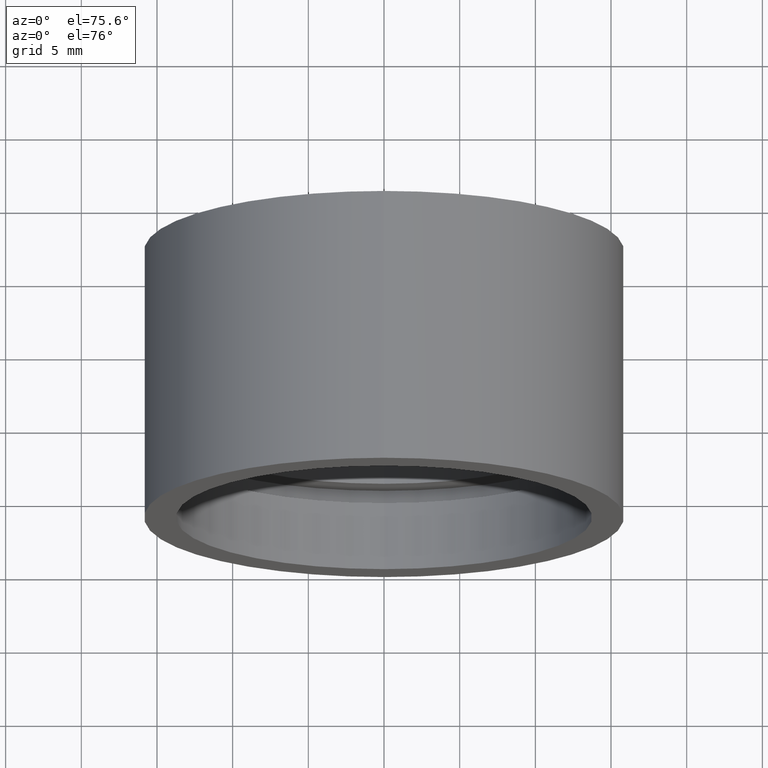
[diagram: clean part render]
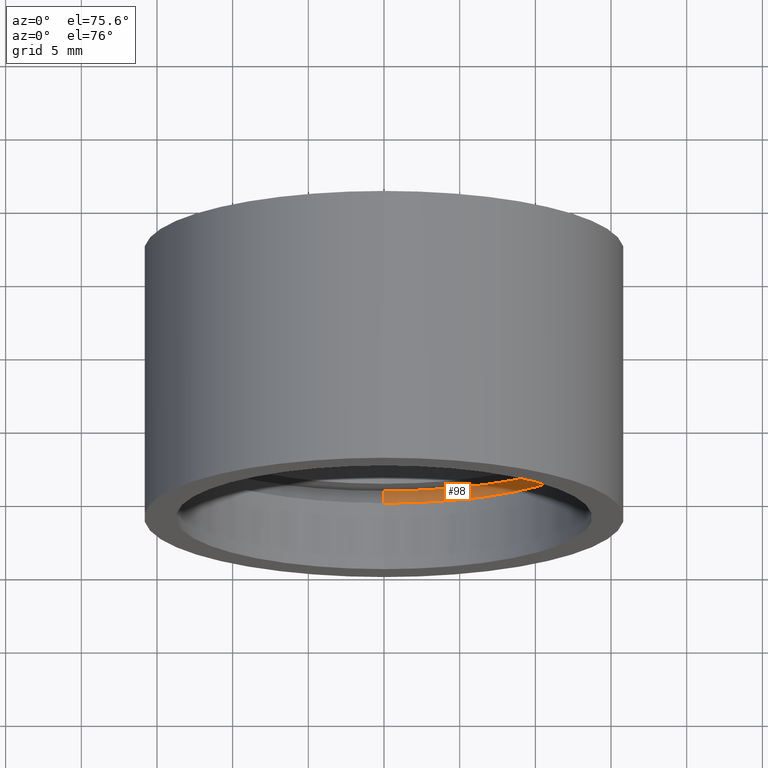
[diagram: same view with one face highlighted and labeled with its STEP entity id]
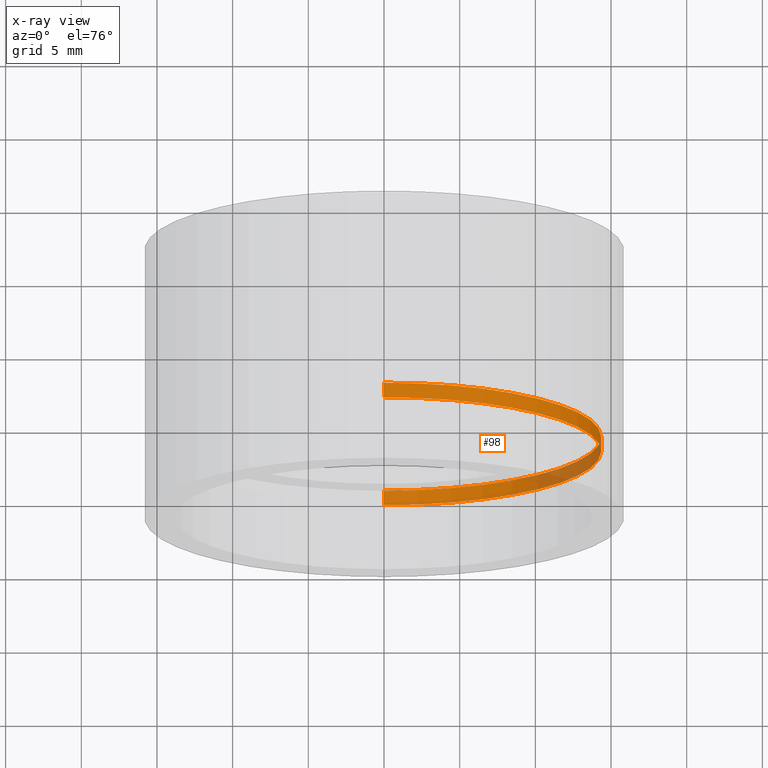
[diagram: x-ray of the same camera — body ghosted, the highlighted face saturated]
A machine part, auxiliary view. The second image highlights one B-rep face of the part: STEP entity #98.
The next image is the same camera in x-ray: the body ghosted, the highlighted face saturated — about 15% of this face is hidden behind the body in this view.
In plain terms, the highlighted cylindrical surface (partial cylindrical patch) has radius 14.35 mm, axis along (-0, 1, -0).
Its self-contained STEP definition (entity closure, byte-faithful):
#14 = VERTEX_POINT ( 'NONE', #276 ) ;
#15 = EDGE_CURVE ( 'NONE', #108, #325, #399, .T. ) ;
#17 = FACE_OUTER_BOUND ( 'NONE', #475, .T. ) ;
#55 = VECTOR ( 'NONE', #201, 1000.000000000000000 ) ;
#98 = ADVANCED_FACE ( 'NONE', ( #17 ), #213, .F. ) ;
#108 = VERTEX_POINT ( 'NONE', #619 ) ;
#109 = CIRCLE ( 'NONE', #278, 14.35000000000001900 ) ;
#122 = AXIS2_PLACEMENT_3D ( 'NONE', #427, #180, #185 ) ;
#127 = CARTESIAN_POINT ( 'NONE',  ( 1.757368156776454300E-015, 4.499999999999976000, -14.35000000000001900 ) ) ;
#132 = ORIENTED_EDGE ( 'NONE', *, *, #191, .T. ) ;
#141 = LINE ( 'NONE', #581, #55 ) ;
#149 = EDGE_CURVE ( 'NONE', #417, #325, #409, .T. ) ;
#180 = DIRECTION ( 'NONE',  ( -0.0000000000000000000, 1.000000000000000000, -0.0000000000000000000 ) ) ;
#185 = DIRECTION ( 'NONE',  ( 0.0000000000000000000, 0.0000000000000000000, 1.000000000000000000 ) ) ;
#191 = EDGE_CURVE ( 'NONE', #14, #108, #141, .T. ) ;
#201 = DIRECTION ( 'NONE',  ( -0.0000000000000000000, 1.000000000000000000, -0.0000000000000000000 ) ) ;
#213 = CYLINDRICAL_SURFACE ( 'NONE', #500, 14.35000000000001900 ) ;
#217 = DIRECTION ( 'NONE',  ( -0.0000000000000000000, 1.000000000000000000, -0.0000000000000000000 ) ) ;
#248 = CARTESIAN_POINT ( 'NONE',  ( 1.757368156776454300E-015, 161.3761669434274500, -14.35000000000001900 ) ) ;
#276 = CARTESIAN_POINT ( 'NONE',  ( 0.0000000000000000000, 4.499999999999976000, 14.35000000000001900 ) ) ;
#278 = AXIS2_PLACEMENT_3D ( 'NONE', #322, #217, #560 ) ;
#286 = CARTESIAN_POINT ( 'NONE',  ( 0.0000000000000000000, 161.3761669434274500, 0.0000000000000000000 ) ) ;
#299 = DIRECTION ( 'NONE',  ( -0.0000000000000000000, 1.000000000000000000, -0.0000000000000000000 ) ) ;
#312 = ORIENTED_EDGE ( 'NONE', *, *, #15, .T. ) ;
#322 = CARTESIAN_POINT ( 'NONE',  ( 0.0000000000000000000, 4.499999999999976000, 0.0000000000000000000 ) ) ;
#325 = VERTEX_POINT ( 'NONE', #499 ) ;
#359 = EDGE_CURVE ( 'NONE', #14, #417, #109, .T. ) ;
#376 = DIRECTION ( 'NONE',  ( 0.0000000000000000000, 0.0000000000000000000, 1.000000000000000000 ) ) ;
#399 = CIRCLE ( 'NONE', #122, 14.35000000000001900 ) ;
#409 = LINE ( 'NONE', #248, #598 ) ;
#417 = VERTEX_POINT ( 'NONE', #127 ) ;
#427 = CARTESIAN_POINT ( 'NONE',  ( 0.0000000000000000000, 5.499999999999976900, 0.0000000000000000000 ) ) ;
#475 = EDGE_LOOP ( 'NONE', ( #489, #554, #132, #312 ) ) ;
#489 = ORIENTED_EDGE ( 'NONE', *, *, #149, .F. ) ;
#499 = CARTESIAN_POINT ( 'NONE',  ( 1.757368156776454300E-015, 5.499999999999976900, -14.35000000000001900 ) ) ;
#500 = AXIS2_PLACEMENT_3D ( 'NONE', #286, #528, #376 ) ;
#528 = DIRECTION ( 'NONE',  ( -0.0000000000000000000, 1.000000000000000000, -0.0000000000000000000 ) ) ;
#554 = ORIENTED_EDGE ( 'NONE', *, *, #359, .F. ) ;
#560 = DIRECTION ( 'NONE',  ( 0.0000000000000000000, 0.0000000000000000000, 1.000000000000000000 ) ) ;
#581 = CARTESIAN_POINT ( 'NONE',  ( 0.0000000000000000000, 161.3761669434274500, 14.35000000000001900 ) ) ;
#598 = VECTOR ( 'NONE', #299, 1000.000000000000000 ) ;
#619 = CARTESIAN_POINT ( 'NONE',  ( 0.0000000000000000000, 5.499999999999976900, 14.35000000000001900 ) ) ;